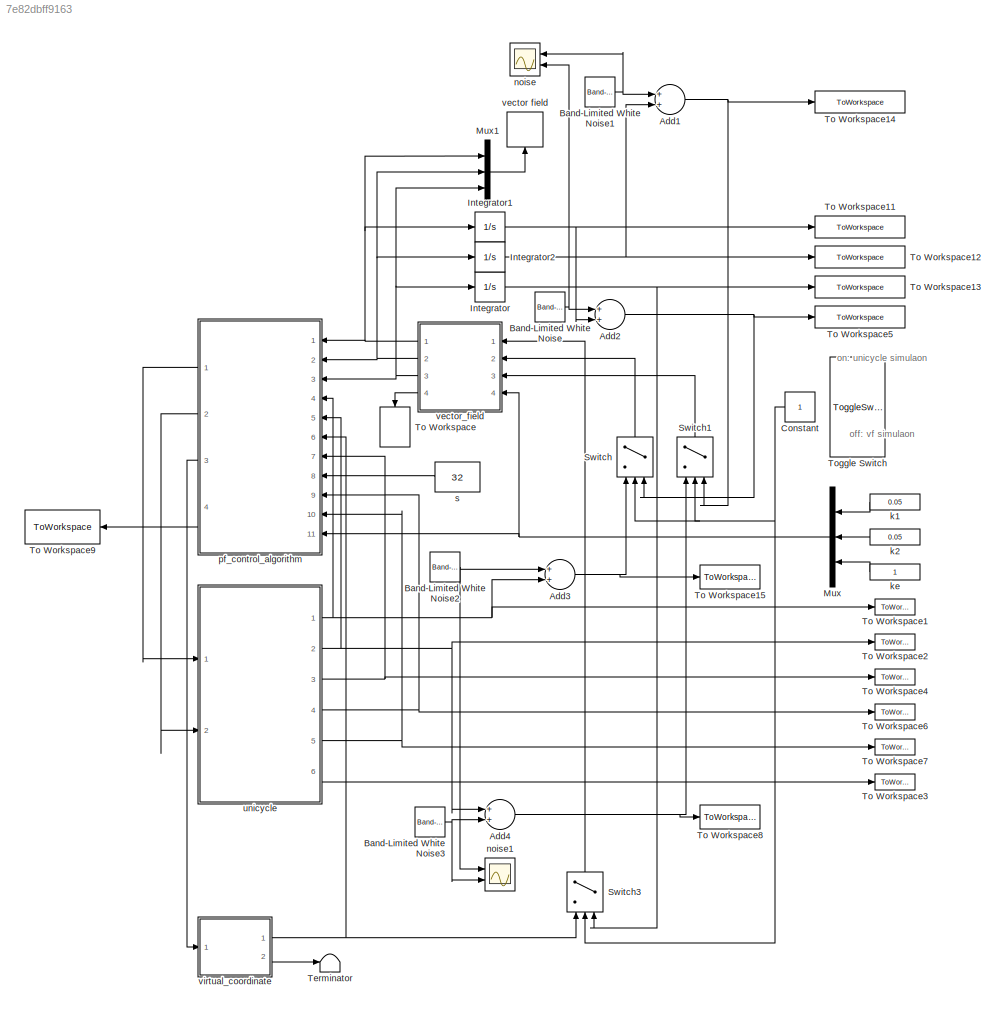
MODEL slx_7e82dbff9163
KIND model
CONFIG AbsTol = auto
CONFIG EnableMultiTasking = on
CONFIG FixedStep = 0.0001
CONFIG MaxStep = auto
CONFIG MinStep = auto
CONFIG RelTol = 1e-5
CONFIG SampleTimeConstraint = Unconstrained
CONFIG Solver = FixedStepAuto
CONFIG SolverName = FixedStepAuto
CONFIG StartTime = 0.0
CONFIG StopFcn = %e_unicycle_3d_trefoil_plot
CONFIG StopTime = 400
BLOCK [Sum] Add1
  InputSameDT = off
  OutDataTypeStr = Inherit: Inherit via internal rule
  Ports = [2, 1]
  SaturateOnIntegerOverflow = off
BLOCK [Sum] Add2
  InputSameDT = off
  OutDataTypeStr = Inherit: Inherit via internal rule
  Ports = [2, 1]
  SaturateOnIntegerOverflow = off
BLOCK [Sum] Add3
  InputSameDT = off
  OutDataTypeStr = Inherit: Inherit via internal rule
  Ports = [2, 1]
  SaturateOnIntegerOverflow = off
BLOCK [Sum] Add4
  InputSameDT = off
  OutDataTypeStr = Inherit: Inherit via internal rule
  Ports = [2, 1]
  SaturateOnIntegerOverflow = off
BLOCK [Reference] Band-Limited White Noise  REF=simulink/Sources/Band-Limited
White Noise
  Ports = [0, 1]
  SourceBlock = simulink/Sources/Band-Limited\nWhite Noise
  SourceProductBaseCode = SL
  SourceProductName = Simulink
  SourceType = Band-Limited White Noise.
BLOCK [Reference] Band-Limited White Noise1  REF=simulink/Sources/Band-Limited
White Noise
  Ports = [0, 1]
  SourceBlock = simulink/Sources/Band-Limited\nWhite Noise
  SourceProductBaseCode = SL
  SourceProductName = Simulink
  SourceType = Band-Limited White Noise.
BLOCK [Reference] Band-Limited White Noise2  REF=simulink/Sources/Band-Limited
White Noise
  Ports = [0, 1]
  SourceBlock = simulink/Sources/Band-Limited\nWhite Noise
  SourceProductBaseCode = SL
  SourceProductName = Simulink
  SourceType = Band-Limited White Noise.
BLOCK [Reference] Band-Limited White Noise3  REF=simulink/Sources/Band-Limited
White Noise
  Ports = [0, 1]
  SourceBlock = simulink/Sources/Band-Limited\nWhite Noise
  SourceProductBaseCode = SL
  SourceProductName = Simulink
  SourceType = Band-Limited White Noise.
BLOCK [Constant] Constant
BLOCK [Integrator] Integrator
  InitialCondition = 47
  Ports = [1, 1]
BLOCK [Integrator] Integrator1
  InitialCondition = 300
  Ports = [1, 1]
BLOCK [Integrator] Integrator2
  InitialCondition = 300
  Ports = [1, 1]
BLOCK [Mux] Mux
  DisplayOption = bar
  Inputs = 3
  Ports = [3, 1]
BLOCK [Mux] Mux1
  DisplayOption = bar
  Inputs = 3
  Ports = [3, 1]
BLOCK [Switch] Switch
  Criteria = u2 > Threshold
  InputSameDT = off
  SaturateOnIntegerOverflow = off
BLOCK [Switch] Switch1
  Criteria = u2 > Threshold
  InputSameDT = off
  SaturateOnIntegerOverflow = off
BLOCK [Switch] Switch3
  Criteria = u2 > Threshold
  InputSameDT = off
  SaturateOnIntegerOverflow = off
BLOCK [Terminator] Terminator
BLOCK [ToWorkspace] To Workspace
  FixptAsFi = on
  MaxDataPoints = inf
  Ports = [1]
  SampleTime = -1
  Save2DSignal = 3-D array (concatenate along third dimension)
  SaveFormat = Timeseries
  VariableName = e
BLOCK [ToWorkspace] To Workspace1
  FixptAsFi = on
  MaxDataPoints = inf
  Ports = [1]
  SampleTime = -1
  Save2DSignal = 3-D array (concatenate along third dimension)
  VariableName = px
BLOCK [ToWorkspace] To Workspace11
  FixptAsFi = on
  MaxDataPoints = inf
  Ports = [1]
  SampleTime = -1
  Save2DSignal = 3-D array (concatenate along third dimension)
  VariableName = vf_px
BLOCK [ToWorkspace] To Workspace12
  FixptAsFi = on
  MaxDataPoints = inf
  Ports = [1]
  SampleTime = -1
  Save2DSignal = 3-D array (concatenate along third dimension)
  VariableName = vf_py
BLOCK [ToWorkspace] To Workspace13
  FixptAsFi = on
  MaxDataPoints = inf
  Ports = [1]
  SampleTime = -1
  Save2DSignal = 3-D array (concatenate along third dimension)
  VariableName = vf_pw
BLOCK [ToWorkspace] To Workspace14
  FixptAsFi = on
  MaxDataPoints = inf
  Ports = [1]
  SampleTime = -1
  Save2DSignal = 3-D array (concatenate along third dimension)
  VariableName = noise_vf_py
BLOCK [ToWorkspace] To Workspace15
  FixptAsFi = on
  MaxDataPoints = inf
  Ports = [1]
  SampleTime = -1
  Save2DSignal = 3-D array (concatenate along third dimension)
  VariableName = noise_px
BLOCK [ToWorkspace] To Workspace2
  FixptAsFi = on
  MaxDataPoints = inf
  Ports = [1]
  SampleTime = -1
  Save2DSignal = 3-D array (concatenate along third dimension)
  VariableName = py
BLOCK [ToWorkspace] To Workspace3
  FixptAsFi = on
  MaxDataPoints = inf
  Ports = [1]
  SampleTime = -1
  Save2DSignal = 3-D array (concatenate along third dimension)
  VariableName = thetadot
BLOCK [ToWorkspace] To Workspace4
  FixptAsFi = on
  MaxDataPoints = inf
  Ports = [1]
  SampleTime = -1
  Save2DSignal = 3-D array (concatenate along third dimension)
  VariableName = theta
BLOCK [ToWorkspace] To Workspace5
  FixptAsFi = on
  MaxDataPoints = inf
  Ports = [1]
  SampleTime = -1
  Save2DSignal = 3-D array (concatenate along third dimension)
  VariableName = noise_vf_px
BLOCK [ToWorkspace] To Workspace6
  FixptAsFi = on
  MaxDataPoints = inf
  Ports = [1]
  SampleTime = -1
  Save2DSignal = 3-D array (concatenate along third dimension)
  VariableName = xdot
BLOCK [ToWorkspace] To Workspace7
  FixptAsFi = on
  MaxDataPoints = inf
  Ports = [1]
  SampleTime = -1
  Save2DSignal = 3-D array (concatenate along third dimension)
  VariableName = ydot
BLOCK [ToWorkspace] To Workspace8
  FixptAsFi = on
  MaxDataPoints = inf
  Ports = [1]
  SampleTime = -1
  Save2DSignal = 3-D array (concatenate along third dimension)
  VariableName = noise_py
BLOCK [ToWorkspace] To Workspace9
  FixptAsFi = on
  MaxDataPoints = inf
  Ports = [1]
  SampleTime = -1
  Save2DSignal = 3-D array (concatenate along third dimension)
  VariableName = hatchidot
BLOCK [ToggleSwitchBlock] Toggle Switch
  WebBlockId = 86
BLOCK [Constant] k1
  Value = 0.05
BLOCK [Constant] k2
  Value = 0.05
BLOCK [Constant] ke
BLOCK [Scope] noise
  Floating = off
  NumInputPorts = 2
  Ports = [2]
  ScopeSpecificationString = Simulink.scopes.TimeScopeBlockCfg('CurrentConfiguration', extmgr.ConfigurationSet(extmgr.Configuration('Core','General UI',true),extmgr.Configuration('Core','Source UI',true),extmgr.Configuration('Sources','WiredSimulink',true,'DataLoggingVariableName','ScopeData1'),extmgr.Configuration('Visuals','Time Domain',true,'SerializedDisplays',{struct('MinYLimReal','-51.18192','MaxYLimReal','49.5079','YLa...<+1514ch>
BLOCK [Scope] noise1
  Floating = off
  NumInputPorts = 2
  Ports = [2]
  ScopeSpecificationString = Simulink.scopes.TimeScopeBlockCfg('CurrentConfiguration', extmgr.ConfigurationSet(extmgr.Configuration('Core','General UI',true),extmgr.Configuration('Core','Source UI',true),extmgr.Configuration('Sources','WiredSimulink',true,'DataLoggingVariableName','ScopeData1'),extmgr.Configuration('Visuals','Time Domain',true,'SerializedDisplays',{struct('MinYLimReal','-51.18192','MaxYLimReal','49.5079','YLa...<+1514ch>
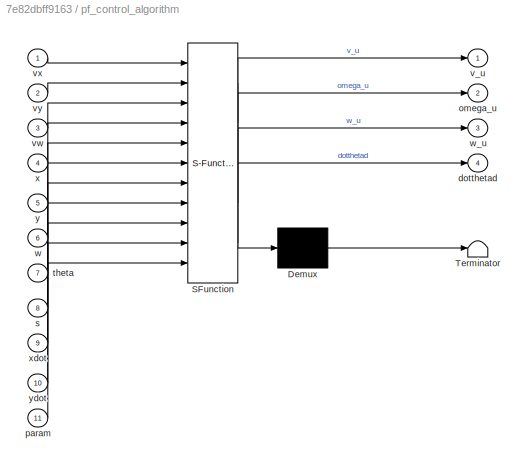
BLOCK [SubSystem] pf_control_algorithm
  ErrorFcn = Stateflow.Translate.translate
  PermitHierarchicalResolution = ExplicitOnly
  Ports = [11, 4]
  RequestExecContextInheritance = off
  SFBlockType = MATLAB Function
  TreatAsAtomicUnit = on
BLOCK [Demux] pf_control_algorithm/ Demux 
  Outputs = 1
  Ports = [1, 1]
BLOCK [S-Function] pf_control_algorithm/ SFunction 
  EnableBusSupport = on
  FunctionName = sf_sfun
  PortCounts = [11 5]
  Ports = [11, 5]
  SFcnIsStateOwnerBlock = off
  SFunctionDeploymentMode = off
  Tag = Stateflow S-Function pf_sim 1
BLOCK [Terminator] pf_control_algorithm/ Terminator 
BLOCK [Outport] pf_control_algorithm/dotthetad
  IconDisplay = Port number
  Port = 4
BLOCK [Outport] pf_control_algorithm/omega_u
  IconDisplay = Port number
  Port = 2
BLOCK [Inport] pf_control_algorithm/param
  IconDisplay = Port number
  Port = 11
BLOCK [Inport] pf_control_algorithm/s
  IconDisplay = Port number
  Port = 8
BLOCK [Inport] pf_control_algorithm/theta
  IconDisplay = Port number
  Port = 7
BLOCK [Outport] pf_control_algorithm/v_u
  IconDisplay = Port number
BLOCK [Inport] pf_control_algorithm/vw
  IconDisplay = Port number
  Port = 3
BLOCK [Inport] pf_control_algorithm/vx
  IconDisplay = Port number
BLOCK [Inport] pf_control_algorithm/vy
  IconDisplay = Port number
  Port = 2
BLOCK [Inport] pf_control_algorithm/w
  IconDisplay = Port number
  Port = 6
BLOCK [Outport] pf_control_algorithm/w_u
  IconDisplay = Port number
  Port = 3
BLOCK [Inport] pf_control_algorithm/x
  IconDisplay = Port number
  Port = 4
BLOCK [Inport] pf_control_algorithm/xdot
  IconDisplay = Port number
  Port = 9
BLOCK [Inport] pf_control_algorithm/y
  IconDisplay = Port number
  Port = 5
BLOCK [Inport] pf_control_algorithm/ydot
  IconDisplay = Port number
  Port = 10
BLOCK [Constant] s
  Value = 32
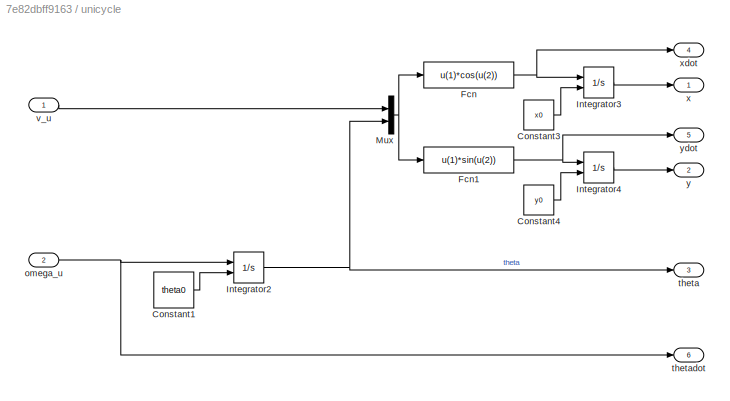
BLOCK [SubSystem] unicycle
  Ports = [2, 6]
  RequestExecContextInheritance = off
BLOCK [Constant] unicycle/Constant1
  Value = theta0
BLOCK [Constant] unicycle/Constant3
  Value = x0
BLOCK [Constant] unicycle/Constant4
  Value = y0
BLOCK [Fcn] unicycle/Fcn
  Expr = u(1)*cos(u(2))
BLOCK [Fcn] unicycle/Fcn1
  Expr = u(1)*sin(u(2))
BLOCK [Integrator] unicycle/Integrator2
  InitialConditionSource = external
  Ports = [2, 1]
BLOCK [Integrator] unicycle/Integrator3
  InitialConditionSource = external
  Ports = [2, 1]
BLOCK [Integrator] unicycle/Integrator4
  InitialConditionSource = external
  Ports = [2, 1]
BLOCK [Mux] unicycle/Mux
  DisplayOption = bar
  Inputs = 2
  Ports = [2, 1]
BLOCK [Inport] unicycle/omega_u
  IconDisplay = Port number
  Port = 2
BLOCK [Outport] unicycle/theta
  IconDisplay = Port number
  Port = 3
BLOCK [Outport] unicycle/thetadot
  IconDisplay = Port number
  Port = 6
BLOCK [Inport] unicycle/v_u
  IconDisplay = Port number
BLOCK [Outport] unicycle/x
  IconDisplay = Port number
BLOCK [Outport] unicycle/xdot
  IconDisplay = Port number
  Port = 4
BLOCK [Outport] unicycle/y
  IconDisplay = Port number
  Port = 2
BLOCK [Outport] unicycle/ydot
  IconDisplay = Port number
  Port = 5
BLOCK [ToWorkspace] vector field
  FixptAsFi = on
  MaxDataPoints = inf
  Ports = [1]
  SampleTime = -1
  Save2DSignal = 3-D array (concatenate along third dimension)
  SaveFormat = Timeseries
  VariableName = v
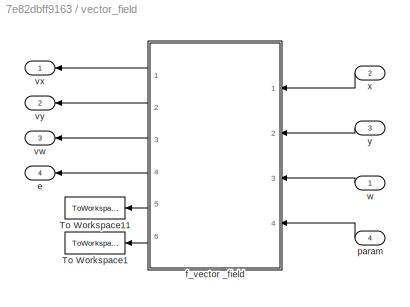
BLOCK [SubSystem] vector_field
  Ports = [4, 4]
  RequestExecContextInheritance = off
BLOCK [ToWorkspace] vector_field/To Workspace1
  FixptAsFi = on
  MaxDataPoints = inf
  Ports = [1]
  SampleTime = -1
  Save2DSignal = 3-D array (concatenate along third dimension)
  VariableName = f2w
BLOCK [ToWorkspace] vector_field/To Workspace11
  FixptAsFi = on
  MaxDataPoints = inf
  Ports = [1]
  SampleTime = -1
  Save2DSignal = 3-D array (concatenate along third dimension)
  VariableName = f1w
BLOCK [Outport] vector_field/e
  IconDisplay = Port number
  Port = 4
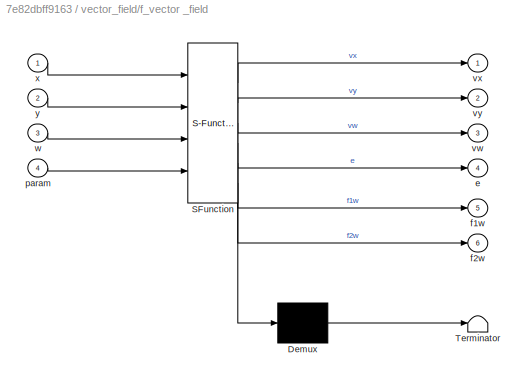
BLOCK [SubSystem] vector_field/f_vector _field
  ErrorFcn = Stateflow.Translate.translate
  PermitHierarchicalResolution = ExplicitOnly
  Ports = [4, 6]
  RequestExecContextInheritance = off
  SFBlockType = MATLAB Function
  TreatAsAtomicUnit = on
BLOCK [Demux] vector_field/f_vector _field/ Demux 
  Outputs = 1
  Ports = [1, 1]
BLOCK [S-Function] vector_field/f_vector _field/ SFunction 
  EnableBusSupport = on
  FunctionName = sf_sfun
  PortCounts = [4 7]
  Ports = [4, 7]
  SFcnIsStateOwnerBlock = off
  SFunctionDeploymentMode = off
  Tag = Stateflow S-Function pf_sim 2
BLOCK [Terminator] vector_field/f_vector _field/ Terminator 
BLOCK [Outport] vector_field/f_vector _field/e
  IconDisplay = Port number
  Port = 4
BLOCK [Outport] vector_field/f_vector _field/f1w
  IconDisplay = Port number
  Port = 5
BLOCK [Outport] vector_field/f_vector _field/f2w
  IconDisplay = Port number
  Port = 6
BLOCK [Inport] vector_field/f_vector _field/param
  IconDisplay = Port number
  Port = 4
BLOCK [Outport] vector_field/f_vector _field/vw
  IconDisplay = Port number
  Port = 3
BLOCK [Outport] vector_field/f_vector _field/vx
  IconDisplay = Port number
BLOCK [Outport] vector_field/f_vector _field/vy
  IconDisplay = Port number
  Port = 2
BLOCK [Inport] vector_field/f_vector _field/w
  IconDisplay = Port number
  Port = 3
BLOCK [Inport] vector_field/f_vector _field/x
  IconDisplay = Port number
BLOCK [Inport] vector_field/f_vector _field/y
  IconDisplay = Port number
  Port = 2
BLOCK [Inport] vector_field/param
  IconDisplay = Port number
  Port = 4
BLOCK [Outport] vector_field/vw
  IconDisplay = Port number
  Port = 3
BLOCK [Outport] vector_field/vx
  IconDisplay = Port number
BLOCK [Outport] vector_field/vy
  IconDisplay = Port number
  Port = 2
BLOCK [Inport] vector_field/w
  IconDisplay = Port number
BLOCK [Inport] vector_field/x
  IconDisplay = Port number
  Port = 2
BLOCK [Inport] vector_field/y
  IconDisplay = Port number
  Port = 3
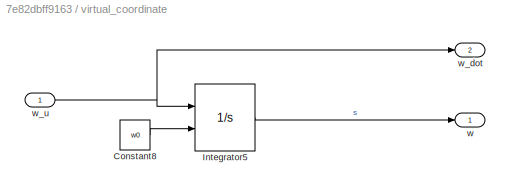
BLOCK [SubSystem] virtual_coordinate
  Ports = [1, 2]
  RequestExecContextInheritance = off
BLOCK [Constant] virtual_coordinate/Constant8
  Value = w0
BLOCK [Integrator] virtual_coordinate/Integrator5
  InitialConditionSource = external
  Ports = [2, 1]
BLOCK [Outport] virtual_coordinate/w
  IconDisplay = Port number
BLOCK [Outport] virtual_coordinate/w_dot
  IconDisplay = Port number
  Port = 2
BLOCK [Inport] virtual_coordinate/w_u
  IconDisplay = Port number
ANNOTATION (root): off: vf simulaon
ANNOTATION (root): on: unicycle simulaon
NET Add1:1 -> Switch1:3, To Workspace14:1
NET Add2:1 -> Switch:3, To Workspace5:1
NET Add3:1 -> Switch:1, To Workspace15:1
NET Add4:1 -> Switch1:1, To Workspace8:1
NET Band-Limited White Noise1:1 -> Add1:1, noise:1
NET Band-Limited White Noise2:1 -> Add3:1, noise1:1
NET Band-Limited White Noise3:1 -> Add4:2, noise1:2
NET Band-Limited White Noise:1 -> Add2:1, noise:2
NET Constant:1 -> Switch1:2, Switch3:2, Switch:2
NET Integrator1:1 -> Add2:2, To Workspace11:1
NET Integrator2:1 -> Add1:2, To Workspace12:1
NET Integrator:1 -> Switch3:3, To Workspace13:1
LINE Mux1:1 -> vector field:1
NET Mux:1 -> pf_control_algorithm:11, vector_field:4
LINE Switch1:1 -> vector_field:3
LINE Switch3:1 -> vector_field:1
LINE Switch:1 -> vector_field:2
LINE k1:1 -> Mux:1
LINE k2:1 -> Mux:2
LINE ke:1 -> Mux:3
LINE pf_control_algorithm:1 -> unicycle:1
LINE pf_control_algorithm:2 -> unicycle:2
LINE pf_control_algorithm:3 -> virtual_coordinate:1
LINE pf_control_algorithm:4 -> To Workspace9:1
LINE s:1 -> pf_control_algorithm:8
LINE unicycle/Constant1:1 -> unicycle/Integrator2:2
LINE unicycle/Constant3:1 -> unicycle/Integrator3:2
LINE unicycle/Constant4:1 -> unicycle/Integrator4:2
NET unicycle/Fcn1:1 -> unicycle/Integrator4:1, unicycle/ydot:1
NET unicycle/Fcn:1 -> unicycle/Integrator3:1, unicycle/xdot:1
NET unicycle/Integrator2:1 -> unicycle/Mux:2, unicycle/theta:1
LINE unicycle/Integrator3:1 -> unicycle/x:1
LINE unicycle/Integrator4:1 -> unicycle/y:1
NET unicycle/Mux:1 -> unicycle/Fcn1:1, unicycle/Fcn:1
NET unicycle/omega_u:1 -> unicycle/Integrator2:1, unicycle/thetadot:1
LINE unicycle/v_u:1 -> unicycle/Mux:1
NET unicycle:1 -> Add3:2, To Workspace1:1, pf_control_algorithm:4
NET unicycle:2 -> Add4:1, To Workspace2:1, pf_control_algorithm:5
NET unicycle:3 -> To Workspace4:1, pf_control_algorithm:7
NET unicycle:4 -> To Workspace6:1, pf_control_algorithm:9
NET unicycle:5 -> To Workspace7:1, pf_control_algorithm:10
LINE unicycle:6 -> To Workspace3:1
LINE vector_field/f_vector _field:1 -> vector_field/vx:1
LINE vector_field/f_vector _field:2 -> vector_field/vy:1
LINE vector_field/f_vector _field:3 -> vector_field/vw:1
LINE vector_field/f_vector _field:4 -> vector_field/e:1
LINE vector_field/f_vector _field:5 -> vector_field/To Workspace11:1
LINE vector_field/f_vector _field:6 -> vector_field/To Workspace1:1
LINE vector_field/param:1 -> vector_field/f_vector _field:4
LINE vector_field/w:1 -> vector_field/f_vector _field:3
LINE vector_field/x:1 -> vector_field/f_vector _field:1
LINE vector_field/y:1 -> vector_field/f_vector _field:2
NET vector_field:1 -> Integrator1:1, Mux1:1, pf_control_algorithm:1
NET vector_field:2 -> Integrator2:1, Mux1:2, pf_control_algorithm:2
NET vector_field:3 -> Integrator:1, Mux1:3, pf_control_algorithm:3
LINE vector_field:4 -> To Workspace:1
LINE virtual_coordinate/Constant8:1 -> virtual_coordinate/Integrator5:2
LINE virtual_coordinate/Integrator5:1 -> virtual_coordinate/w:1
NET virtual_coordinate/w_u:1 -> virtual_coordinate/Integrator5:1, virtual_coordinate/w_dot:1
NET virtual_coordinate:1 -> Switch3:1, pf_control_algorithm:6
LINE virtual_coordinate:2 -> Terminator:1
note: NET lines group one-source signal fan-out (src -> all destinations, sorted); 1:1 wires keep LINE
CHART pf_control_algorithm states=1 transitions=1
  STATE_LABEL 'eML_blk_kernel()'
  STATE_LABEL 'SCRIPT:\nfunction [v_u, omega_u, w_u, dotthetad] = fcn(vx, vy, vw, x, y, w, theta, s, xdot, ydot, param)\nk1 = param(1); k2 = param(2); ke = param(3);\n\nE = [0, -1; 1, 0];\nchi = [vx; vy; vw];\nhatchi = chi/norm(chi);\nhatchip = hatchi(1:2);\nh = [cos(theta); sin(theta)];\ng = s * hatchip;\nhatg = g / norm(g);\nwdot = s*hatchi(3);            % speed in the virtual coordinate w\n\nxidot=[xdot; ydot; wdot];   %...<+3608ch>'
CHART vector_field/f_vector _field states=1 transitions=1
  STATE_LABEL 'eML_blk_kernel()'
  STATE_LABEL 'SCRIPT:\nfunction [vx, vy, vw, e, f1w, f2w] = fcn(x, y, w, param)\n\nk1 = param(1); k2 = param(2); \ne1 = x - 250*cos((3*w)/50 + 1/10) - 600;\ne2 = y - 250*cos((2*w)/25 + 7/10) - 350;\nf1w = x - e1;\nf2w = y - e2;\n\nn1 = [        1;\n              0;\n   15*sin((3*w)/50 + 1/10)];\nn2 = [        0;\n              1;\n 20*sin((2*w)/25 + 7/10)];\n\nnke = k1*e1*n1+k2*e2*n2;\n\nv = cross(n1,n2) - nke;     % vector fiel...<+52ch>'
